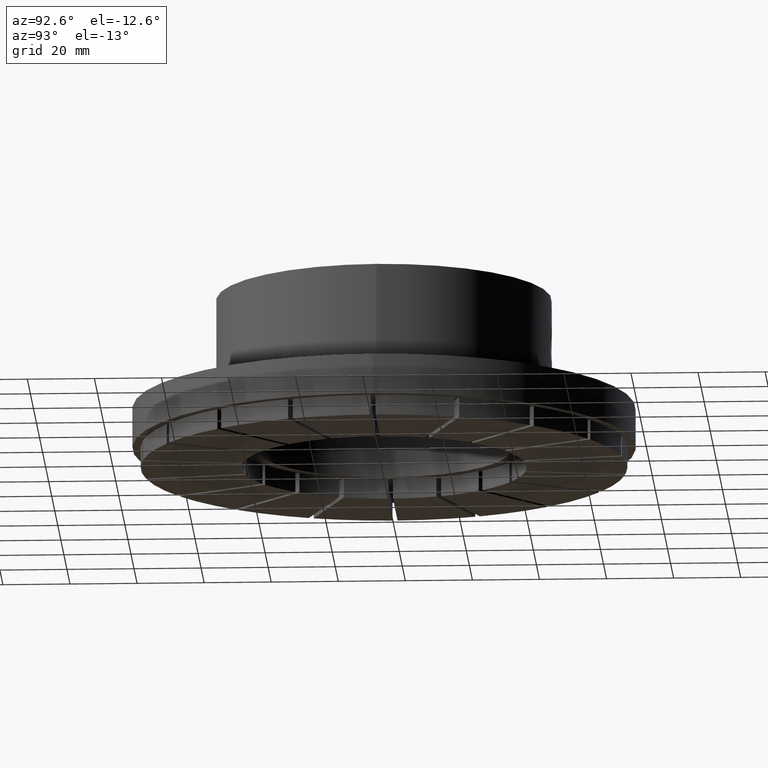
[diagram: clean part render]
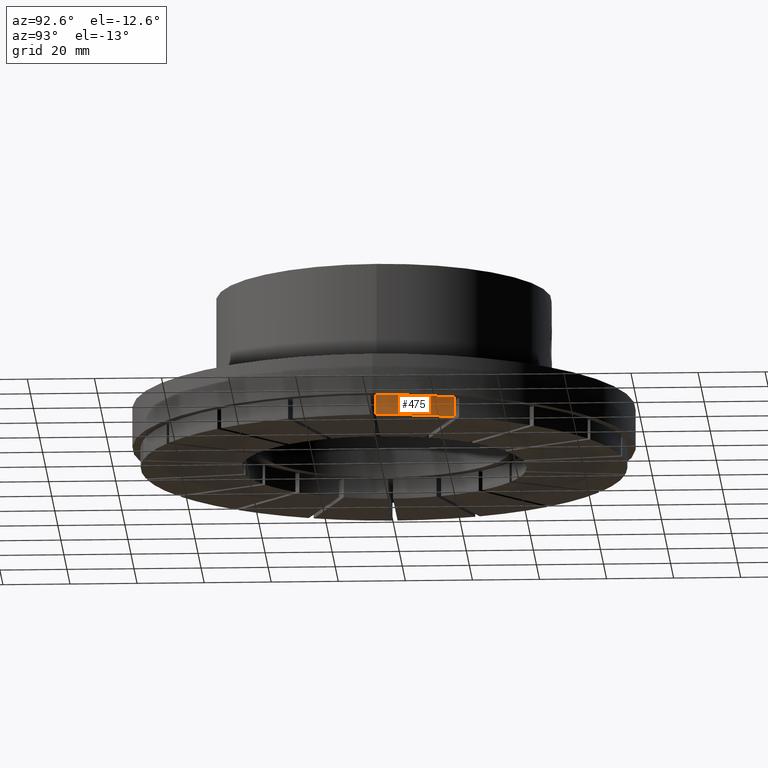
[diagram: same view with one face highlighted and labeled with its STEP entity id]
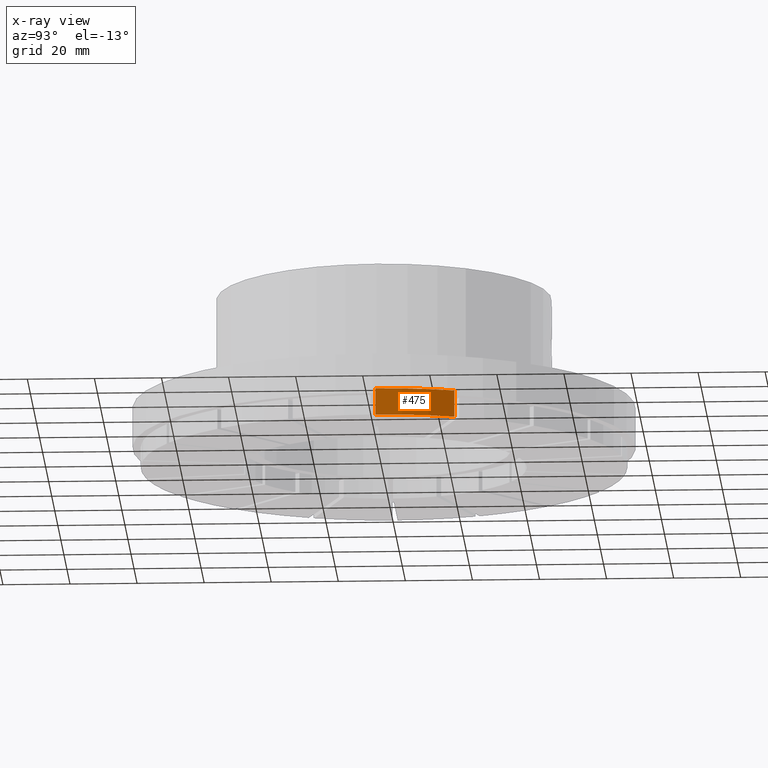
[diagram: x-ray of the same camera — body ghosted, the highlighted face saturated]
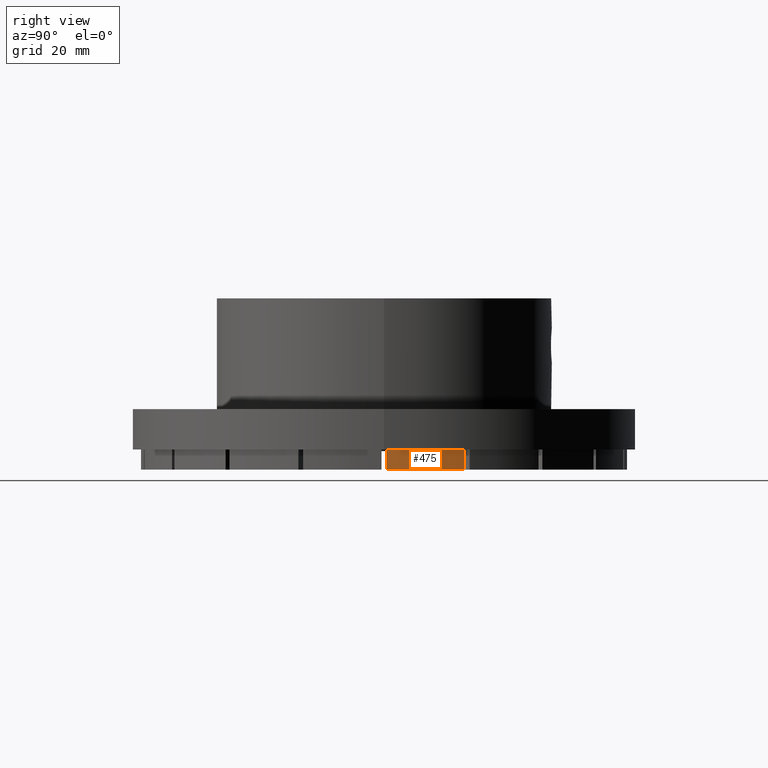
[diagram: same view with one face highlighted and labeled with its STEP entity id]
A machine part, auxiliary view. The second image highlights one B-rep face of the part: STEP entity #475.
The next image is the same camera in x-ray: the body ghosted, the highlighted face saturated — about 0% of this face is hidden behind the body in this view.
A second angle (right view) of the same face is appended — the face is thin or edge-on in the first view.
In plain terms, the highlighted cylindrical surface (partial cylindrical patch) has radius 72.5 mm, axis along (0, 0, 1).
Its self-contained STEP definition (entity closure, byte-faithful):
#475 = ADVANCED_FACE( '', ( #744 ), #745, .T. );
#744 = FACE_OUTER_BOUND( '', #1016, .T. );
#745 = CYLINDRICAL_SURFACE( '', #1017, 72.5000000000000 );
#1016 = EDGE_LOOP( '', ( #1877, #1878, #1879, #1880 ) );
#1017 = AXIS2_PLACEMENT_3D( '', #1881, #1882, #1883 );
#1877 = ORIENTED_EDGE( '', *, *, #2179, .T. );
#1878 = ORIENTED_EDGE( '', *, *, #2180, .F. );
#1879 = ORIENTED_EDGE( '', *, *, #2176, .F. );
#1880 = ORIENTED_EDGE( '', *, *, #2173, .T. );
#1881 = CARTESIAN_POINT( '', ( 1.38777878078145E-014, 1.08420217248550E-016, 8.00000000000000 ) );
#1882 = DIRECTION( '', ( -0.000000000000000, 0.000000000000000, 1.00000000000000 ) );
#1883 = DIRECTION( '', ( -0.999946490839491, -0.0103448275862069, 0.000000000000000 ) );
#2173 = EDGE_CURVE( '', #2636, #2634, #2637, .T. );
#2176 = EDGE_CURVE( '', #2636, #2641, #2642, .T. );
#2179 = EDGE_CURVE( '', #2634, #2646, #2647, .T. );
#2180 = EDGE_CURVE( '', #2641, #2646, #2648, .T. );
#2634 = VERTEX_POINT( '', #3467 );
#2636 = VERTEX_POINT( '', #3470 );
#2637 = LINE( '', #3471, #3472 );
#2641 = VERTEX_POINT( '', #3478 );
#2642 = CIRCLE( '', #3479, 72.5000000000000 );
#2646 = VERTEX_POINT( '', #3484 );
#2647 = CIRCLE( '', #3485, 72.5000000000000 );
#2648 = LINE( '', #3486, #3487 );
#3467 = CARTESIAN_POINT( '', ( 72.4961205858631, 0.750000000000000, 0.000000000000000 ) );
#3470 = CARTESIAN_POINT( '', ( 72.4961205858631, 0.750000000000000, 8.00000000000000 ) );
#3471 = CARTESIAN_POINT( '', ( 72.4961205858631, 0.750000000000000, 8.00000000000000 ) );
#3472 = VECTOR( '', #3935, 1000.00000000000 );
#3478 = CARTESIAN_POINT( '', ( 68.3805846576352, 24.0903640877424, 8.00000000000000 ) );
#3479 = AXIS2_PLACEMENT_3D( '', #3938, #3939, #3940 );
#3484 = CARTESIAN_POINT( '', ( 68.3805846576352, 24.0903640877424, 0.000000000000000 ) );
#3485 = AXIS2_PLACEMENT_3D( '', #3945, #3946, #3947 );
#3486 = CARTESIAN_POINT( '', ( 68.3805846576352, 24.0903640877424, 8.00000000000000 ) );
#3487 = VECTOR( '', #3948, 1000.00000000000 );
#3935 = DIRECTION( '', ( 0.000000000000000, -0.000000000000000, -1.00000000000000 ) );
#3938 = CARTESIAN_POINT( '', ( 1.38777878078145E-014, 1.08420217248550E-016, 8.00000000000000 ) );
#3939 = DIRECTION( '', ( 0.000000000000000, 0.000000000000000, 1.00000000000000 ) );
#3940 = DIRECTION( '', ( 1.00000000000000, 0.000000000000000, 0.000000000000000 ) );
#3945 = CARTESIAN_POINT( '', ( 1.38777878078145E-014, 1.08420217248550E-016, 0.000000000000000 ) );
#3946 = DIRECTION( '', ( 0.000000000000000, 0.000000000000000, 1.00000000000000 ) );
#3947 = DIRECTION( '', ( 1.00000000000000, 0.000000000000000, 0.000000000000000 ) );
#3948 = DIRECTION( '', ( 0.000000000000000, -0.000000000000000, -1.00000000000000 ) );